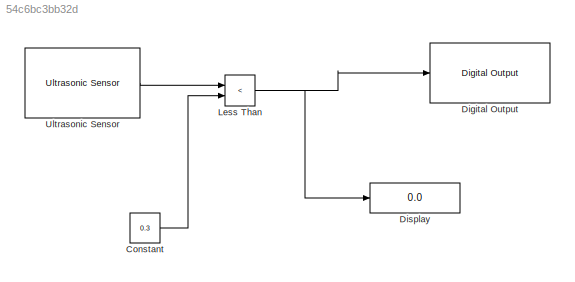
MODEL slx_54c6bc3bb32d
KIND model
CONFIG AbsTol = auto
CONFIG EnableMultiTasking = on
CONFIG FixedStep = auto
CONFIG MaxStep = auto
CONFIG MinStep = auto
CONFIG RelTol = 1e-3
CONFIG SampleTimeConstraint = Unconstrained
CONFIG Solver = FixedStepDiscrete
CONFIG SolverName = FixedStepDiscrete
CONFIG StartTime = 0.0
CONFIG StopTime = inf
BLOCK [Constant] Constant
  Value = 0.3
BLOCK [Reference] Digital Output  REF=arduinolib/Digital Output
  Ports = [1]
  SourceBlock = arduinolib/Digital Output
  SourceProductBaseCode = ARDUINO
  SourceProductName = Simulink Support Package for Arduino Hardware
  SourceType = Arduino Digital Output
BLOCK [Display] Display
  Decimation = 1
  Ports = [1]
BLOCK [RelationalOperator] Less Than
  InputSameDT = off
  Operator = <
  OutDataTypeStr = boolean
  Ports = [2, 1]
  RndMeth = Simplest
BLOCK [Reference] Ultrasonic Sensor  REF=arduinosensorlib/Ultrasonic Sensor
  Ports = [0, 1]
  SourceBlock = arduinosensorlib/Ultrasonic Sensor
  SourceProductName = Simulink Support Package for Arduino Hardware
  SourceType = Arduino Ultrasonic Sensor
LINE Constant:1 -> Less Than:2
NET Less Than:1 -> Digital Output:1, Display:1
LINE Ultrasonic Sensor:1 -> Less Than:1
note: NET lines group one-source signal fan-out (src -> all destinations, sorted); 1:1 wires keep LINE
